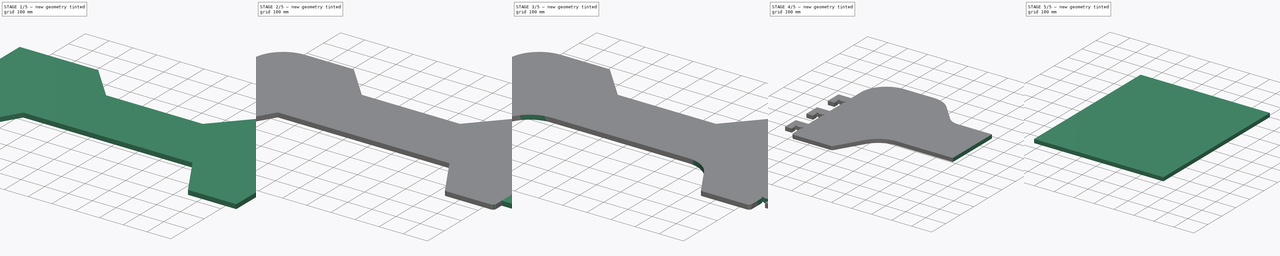
[diagram: build sequence overview — one tinted view per stage of 5, left to right]
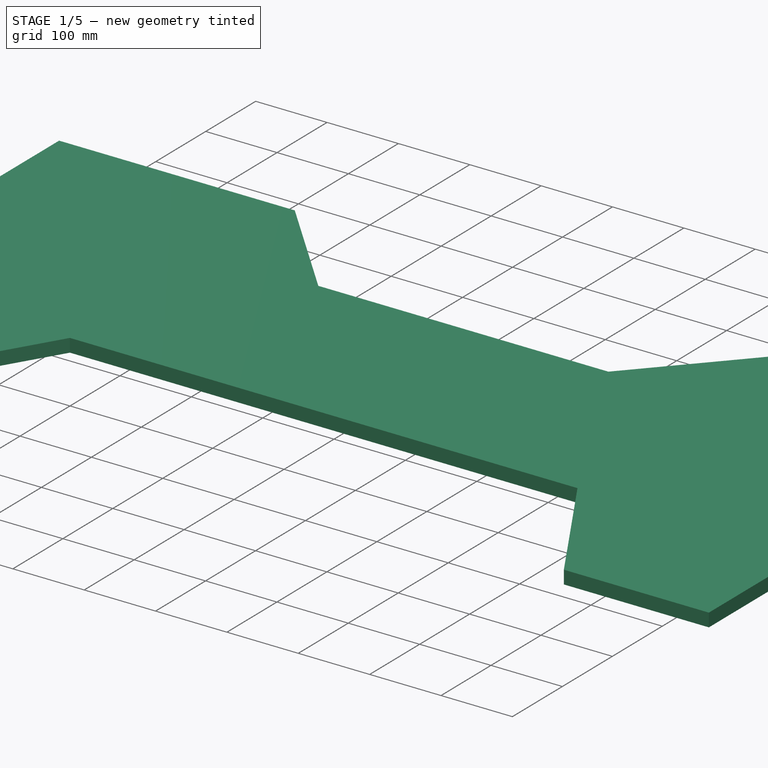
[diagram: stage 1 of 5 — iso view after this stage's code; geometry added in this stage tinted green]
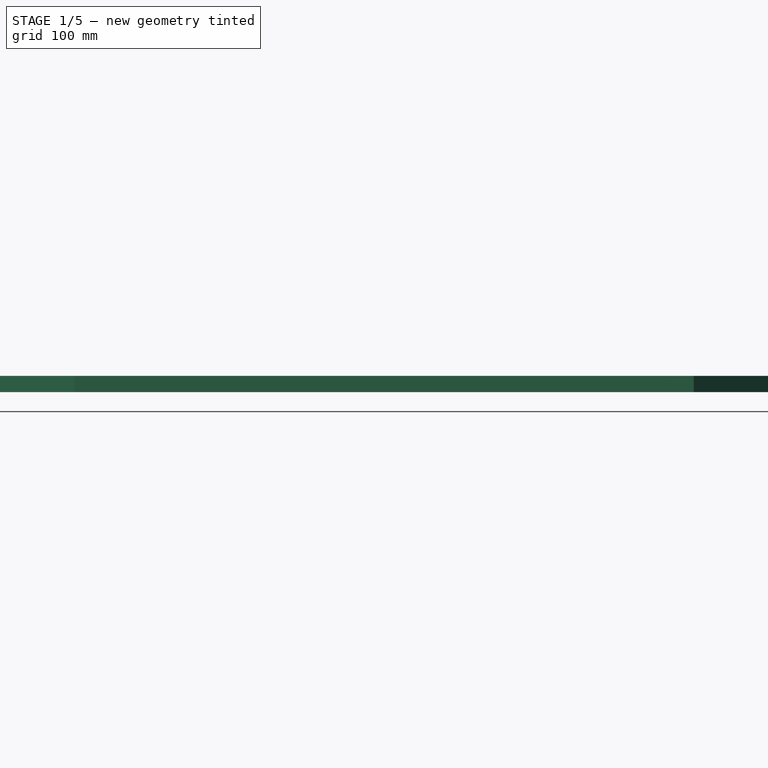
[diagram: stage 1 of 5 — front view after this stage's code; geometry added in this stage tinted green]
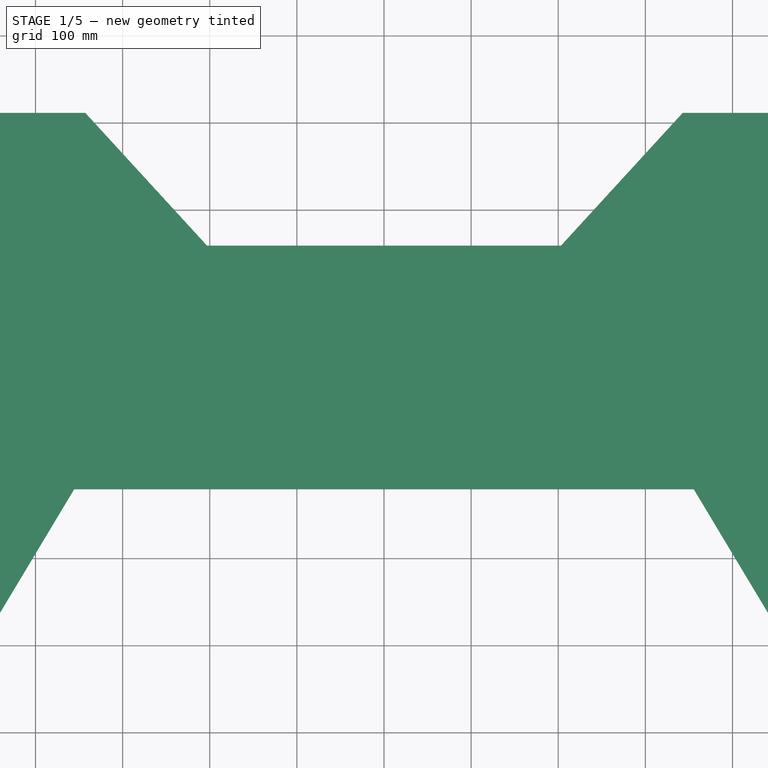
[diagram: stage 1 of 5 — top view after this stage's code; geometry added in this stage tinted green]
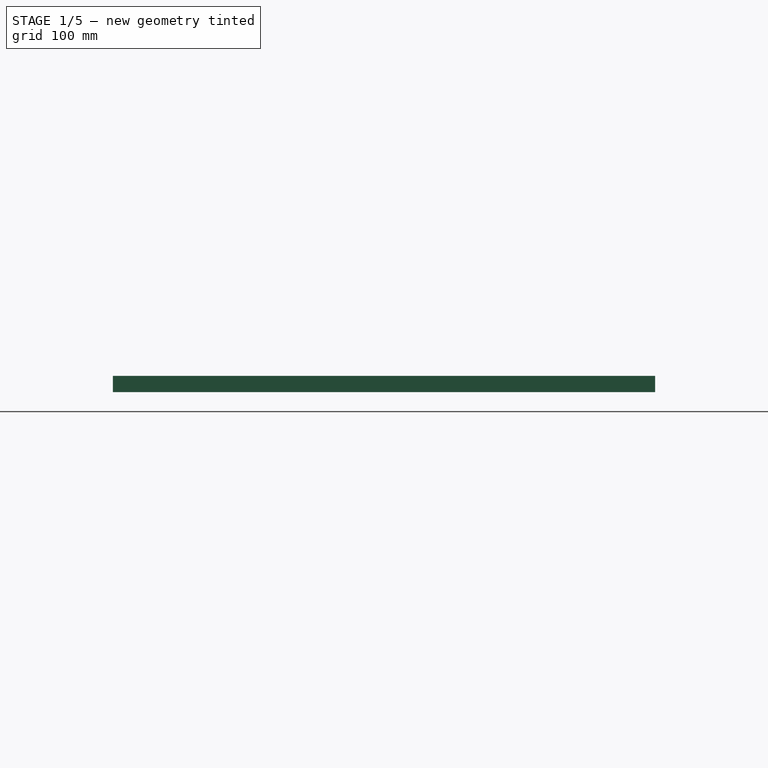
[diagram: stage 1 of 5 — right view after this stage's code; geometry added in this stage tinted green]
FCSTD DOCUMENT  (FreeCAD 0.17R13515 (Git))
Label: side3
License: All rights reserved
LicenseURL: http://en.wikipedia.org/wiki/All_rights_reserved
objects: Sketcher::SketchObject×8, PartDesign::Pocket×6, PartDesign::Fillet×5, Path::FeaturePython×4, PartDesign::Pad×2, Part::FeaturePython×2, Spreadsheet::Sheet×1, PartDesign::Body×1, App::FeaturePython×1, Path::FeatureCompoundPython×1
note: 34 computed .brp shape members not serialized (recipe doc carries the construction recipe); baked Part::Feature solids carry a one-line shape summary decoded from their .brp

FEATURE [Sketcher::SketchObject] Sketch
  MapMode = 5
  Support = -> [XY_Plane]
  expr: Constraints[15] = Spreadsheet.tall
  expr: Constraints[14] = Spreadsheet.width
  sketch-geometry (6):
    g0: LineSegment StartX=-673.1 StartY=311.15 StartZ=0 EndX=673.1 EndY=311.15 EndZ=0
    g1: LineSegment StartX=673.1 StartY=311.15 StartZ=0 EndX=673.1 EndY=-311.15 EndZ=0
    g2: LineSegment StartX=673.1 StartY=-311.15 StartZ=0 EndX=-673.1 EndY=-311.15 EndZ=0
    g3: LineSegment StartX=-673.1 StartY=-311.15 StartZ=0 EndX=-673.1 EndY=311.15 EndZ=0
    g4: LineSegment [constr] StartX=-673.1 StartY=311.15 StartZ=0 EndX=673.1 EndY=-311.15 EndZ=0
    g5: LineSegment [constr] StartX=673.1 StartY=311.15 StartZ=0 EndX=-673.1 EndY=-311.15 EndZ=0
  constraints (16):
    c: Coincident(g0,g1)
    c: Coincident(g1,g2)
    c: Coincident(g2,g3)
    c: Coincident(g3,g0)
    c: Horizontal(g0)
    c: Horizontal(g2)
    c: Vertical(g1)
    c: Vertical(g3)
    c: Coincident(g4,g0)
    c: Coincident(g4,g1)
    c: Coincident(g5,g0)
    c: Coincident(g5,g2)
    c: PointOnObject(g-1,g4)
    c: PointOnObject(g-1,g5)
    c: Distance(g2) = 1346.2
    c: Distance(g3) = 622.3
FEATURE [Spreadsheet::Sheet] Spreadsheet
  cells = A1=width; B1(width)==53in; A2=tall; B2(tall)==24.5in; A3=bottom clearance; B3(botclear)==7.5in; A4=leg width; B4(legwide)==8in; A5=joint tall; B5(jointtall)==3in; A6=joint wide; B6(jointwide)==0.73499999999999999in; A7=open bed; B7(opentall)==8in; A8=side thick; B8(sidethick)==11in; A9=top cleared half; B9(topclear)==13in; A10=top bottom U; B10(topbotU)==8in; A11=topUdepth; B11(topUdep)==8in; A12=bottomclear top part; B12(botcleartop)==14in; A13=slott; B13(slott)==3in
FEATURE [PartDesign::Pad] Pad
  Length = 18.669
  Length2 = 100
  Profile = -> Sketch
  Type = 0
FEATURE [Sketcher::SketchObject] Sketch001
  ExternalGeometry = -> [Pad]
  MapMode = 5
  Placement = pos=(0,0,18.669) rot=(0,0,1;0rad)
  Support = -> [Pad]
  expr: Constraints[8] = Spreadsheet.botclear
  expr: Constraints[4] = Spreadsheet.botcleartop
  expr: Constraints[6] = Spreadsheet.botcleartop
  expr: Constraints[2] = Spreadsheet.legwide
  expr: Constraints[3] = Spreadsheet.legwide
  expr: Constraints[1] = Spreadsheet.botclear
  sketch-geometry (4):
    g0: LineSegment StartX=-355.6 StartY=-120.65 StartZ=0 EndX=355.6 EndY=-120.65 EndZ=0
    g1: LineSegment StartX=355.6 StartY=-120.65 StartZ=0 EndX=469.9 EndY=-311.15 EndZ=0
    g2: LineSegment StartX=469.9 StartY=-311.15 StartZ=0 EndX=-469.9 EndY=-311.15 EndZ=0
    g3: LineSegment StartX=-469.9 StartY=-311.15 StartZ=0 EndX=-355.6 EndY=-120.65 EndZ=0
  constraints (12):
    c: PointOnObject(g1,g-3)
    c: DistanceY(g1,g0) = 190.5
    c: DistanceX(g1,g-3) = 203.2
    c: DistanceX(g-3,g2) = 203.2
    c: DistanceX(g0,g-1) = 355.6
    c: Coincident(g3,g0)
    c: DistanceX(g-1,g0) = 355.6
    c: Coincident(g1,g0)
    c: DistanceY(g2,g0) = 190.5
    c: Coincident(g2,g3)
    c: PointOnObject(g2,g-3)
    c: Coincident(g2,g1)
FEATURE [PartDesign::Pocket] Pocket
  BaseFeature = -> Pad
  Length = 4.99999
  Length2 = 100
  Profile = -> Sketch001
  Type = 1
FEATURE [Sketcher::SketchObject] Sketch002
  ExternalGeometry = -> [Pocket]
  MapMode = 5
  Placement = pos=(0,0,18.669) rot=(0,0,1;0rad)
  Support = -> [Pocket]
  expr: Constraints[11] = Spreadsheet.topbotU
  expr: Constraints[9] = Spreadsheet.sidethick
  expr: Constraints[2] = Spreadsheet.topclear
  expr: Constraints[10] = Spreadsheet.topbotU
  expr: Constraints[1] = Spreadsheet.topclear
  sketch-geometry (4):
    g0: LineSegment StartX=-342.9 StartY=311.15 StartZ=0 EndX=342.9 EndY=311.15 EndZ=0
    g1: LineSegment StartX=342.9 StartY=311.15 StartZ=0 EndX=203.2 EndY=158.75 EndZ=0
    g2: LineSegment StartX=-203.2 StartY=158.75 StartZ=0 EndX=-342.9 EndY=311.15 EndZ=0
    g3: LineSegment StartX=-203.2 StartY=158.75 StartZ=0 EndX=203.2 EndY=158.75 EndZ=0
  constraints (12):
    c: PointOnObject(g0,g-3)
    c: DistanceX(g-6,g0) = 330.2
    c: DistanceX(g0,g-5) = 330.2
    c: Coincident(g1,g0)
    c: Coincident(g2,g0)
    c: Coincident(g3,g2)
    c: Coincident(g3,g1)
    c: Horizontal(g3)
    c: Parallel(g3,g0)
    c: DistanceY(g-4,g2) = 279.4
    c: DistanceX(g-1,g1) = 203.2
    c: DistanceX(g2,g-1) = 203.2
FEATURE [PartDesign::Pocket] Pocket001
  BaseFeature = -> Pocket
  Length = 4.99999
  Length2 = 100
  Profile = -> Sketch002
  Type = 1
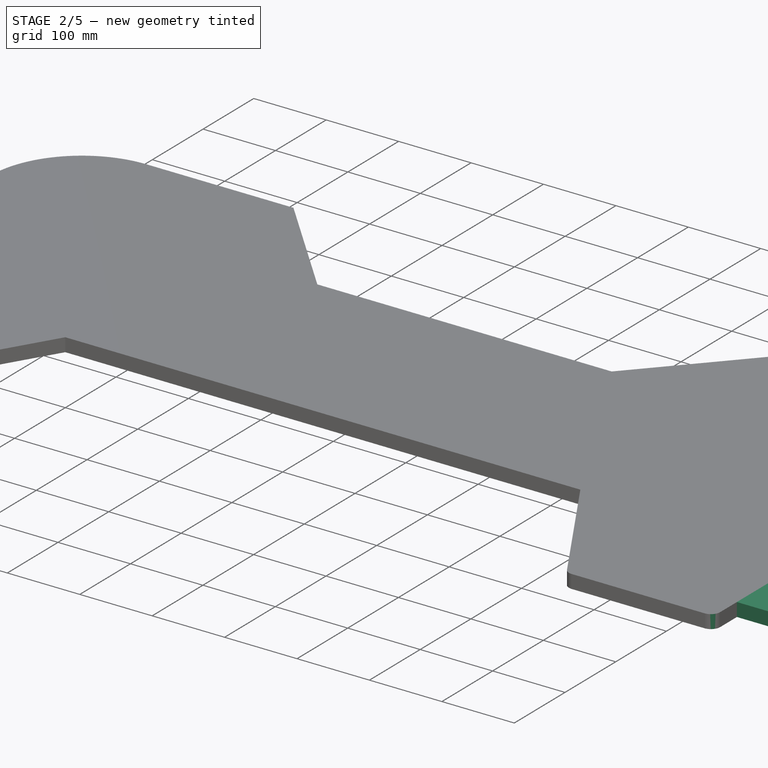
[diagram: stage 2 of 5 — iso view after this stage's code; geometry added in this stage tinted green]
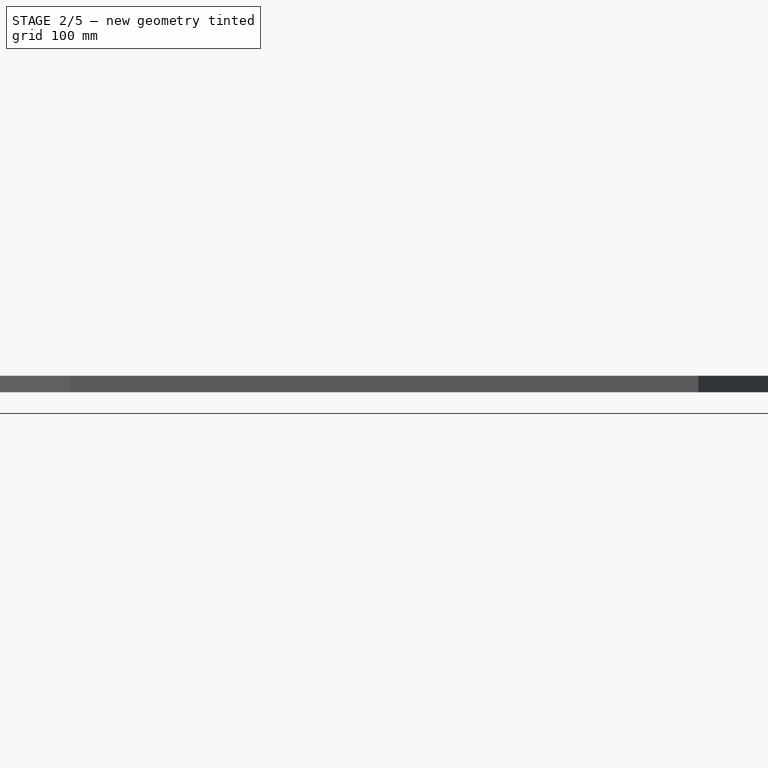
[diagram: stage 2 of 5 — front view after this stage's code; geometry added in this stage tinted green]
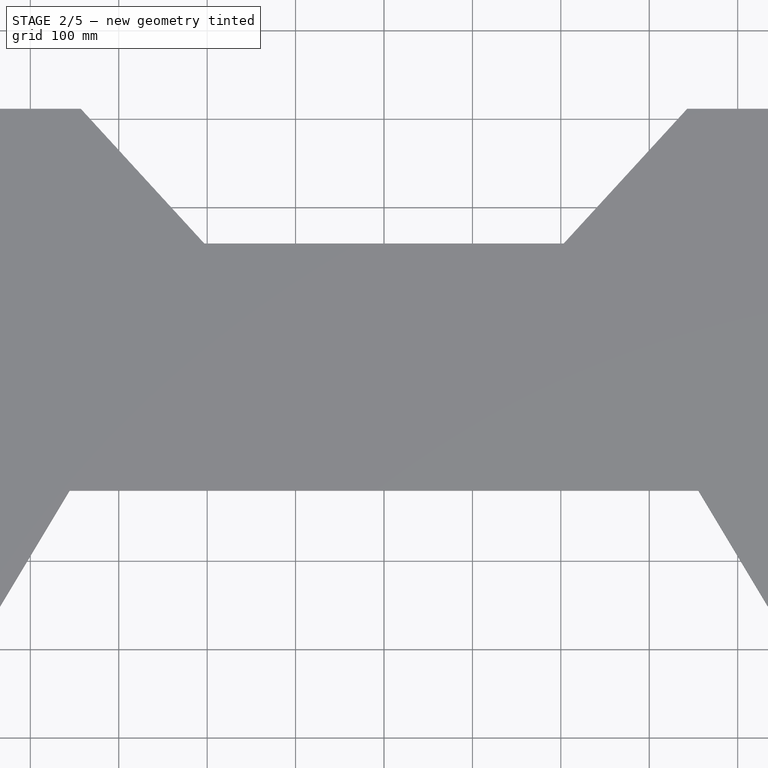
[diagram: stage 2 of 5 — top view after this stage's code; geometry added in this stage tinted green]
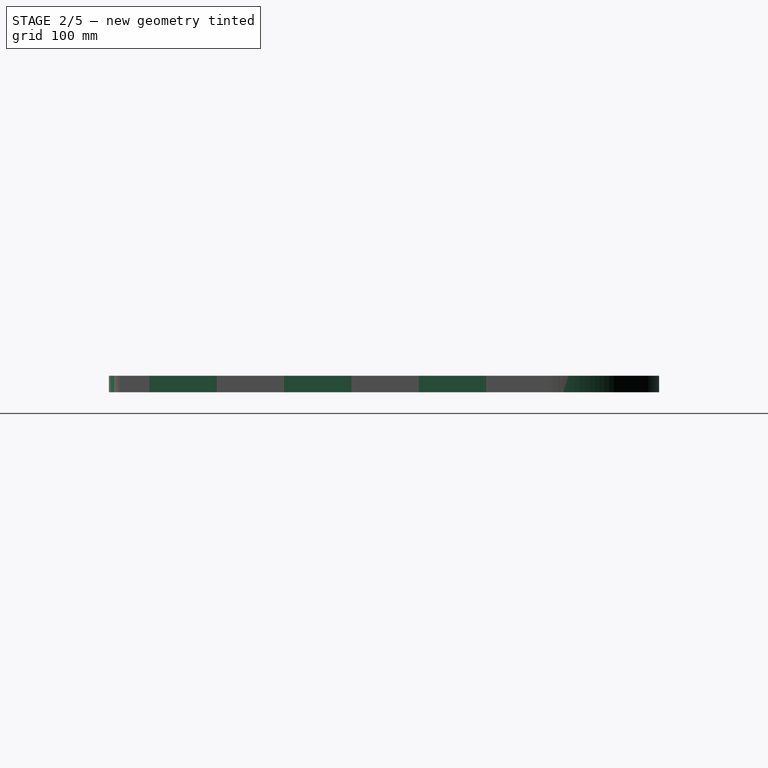
[diagram: stage 2 of 5 — right view after this stage's code; geometry added in this stage tinted green]
FEATURE [Sketcher::SketchObject] Sketch003
  ExternalGeometry = -> [Pocket001]
  MapMode = 5
  Placement = pos=(0,0,18.669) rot=(0,0,1;0rad)
  Support = -> [Pocket001]
  sketch-geometry (28):
    g0: LineSegment StartX=673.1 StartY=115.57 StartZ=0 EndX=736.6 EndY=115.57 EndZ=0
    g1: LineSegment StartX=736.6 StartY=115.57 StartZ=0 EndX=736.6 EndY=39.37 EndZ=0
    g2: LineSegment StartX=736.6 StartY=39.37 StartZ=0 EndX=673.1 EndY=39.37 EndZ=0
    g3: LineSegment StartX=673.1 StartY=39.37 StartZ=0 EndX=673.1 EndY=115.57 EndZ=0
    g4: LineSegment StartX=673.1 StartY=-36.83 StartZ=0 EndX=736.6 EndY=-36.83 EndZ=0
    g5: LineSegment StartX=736.6 StartY=-36.83 StartZ=0 EndX=736.6 EndY=-113.03 EndZ=0
    g6: LineSegment StartX=736.6 StartY=-113.03 StartZ=0 EndX=673.1 EndY=-113.03 EndZ=0
    g7: LineSegment StartX=673.1 StartY=-113.03 StartZ=0 EndX=673.1 EndY=-36.83 EndZ=0
    g8: LineSegment StartX=673.1 StartY=-189.23 StartZ=0 EndX=736.6 EndY=-189.23 EndZ=0
    g9: LineSegment StartX=736.6 StartY=-189.23 StartZ=0 EndX=736.6 EndY=-265.43 EndZ=0
    g10: LineSegment StartX=736.6 StartY=-265.43 StartZ=0 EndX=673.1 EndY=-265.43 EndZ=0
    g11: LineSegment StartX=673.1 StartY=-265.43 StartZ=0 EndX=673.1 EndY=-189.23 EndZ=0
    g12: LineSegment StartX=-673.1 StartY=-265.43 StartZ=0 EndX=-736.6 EndY=-265.43 EndZ=0
    g13: LineSegment StartX=-736.6 StartY=-265.43 StartZ=0 EndX=-736.6 EndY=-189.23 EndZ=0
    g14: LineSegment StartX=-736.6 StartY=-189.23 StartZ=0 EndX=-673.1 EndY=-189.23 EndZ=0
    g15: LineSegment StartX=-673.1 StartY=-189.23 StartZ=0 EndX=-673.1 EndY=-265.43 EndZ=0
    g16: LineSegment StartX=-673.1 StartY=39.37 StartZ=0 EndX=-736.6 EndY=39.37 EndZ=0
    g17: LineSegment StartX=-736.6 StartY=39.37 StartZ=0 EndX=-736.6 EndY=115.57 EndZ=0
    g18: LineSegment StartX=-736.6 StartY=115.57 StartZ=0 EndX=-673.1 EndY=115.57 EndZ=0
    g19: LineSegment StartX=-673.1 StartY=115.57 StartZ=0 EndX=-673.1 EndY=39.37 EndZ=0
    g20: LineSegment StartX=-673.1 StartY=-113.03 StartZ=0 EndX=-736.6 EndY=-113.03 EndZ=0
    g21: LineSegment StartX=-736.6 StartY=-113.03 StartZ=0 EndX=-736.6 EndY=-36.83 EndZ=0
    g22: LineSegment StartX=-736.6 StartY=-36.83 StartZ=0 EndX=-673.1 EndY=-36.83 EndZ=0
    g23: LineSegment StartX=-673.1 StartY=-36.83 StartZ=0 EndX=-673.1 EndY=-113.03 EndZ=0
    g24: LineSegment [constr] StartX=736.6 StartY=-189.23 StartZ=0 EndX=736.6 EndY=-113.03 EndZ=0
    g25: LineSegment [constr] StartX=736.6 StartY=39.37 StartZ=0 EndX=736.6 EndY=-36.83 EndZ=0
    g26: LineSegment [constr] StartX=-736.6 StartY=-189.23 StartZ=0 EndX=-736.6 EndY=-113.03 EndZ=0
    g27: LineSegment [constr] StartX=-736.6 StartY=-36.83 StartZ=0 EndX=-736.6 EndY=39.37 EndZ=0
  constraints (80):
    c: Coincident(g0,g1)
    c: Coincident(g1,g2)
    c: Coincident(g2,g3)
    c: Coincident(g3,g0)
    c: Horizontal(g0)
    c: Horizontal(g2)
    c: Vertical(g1)
    c: Vertical(g3)
    c: PointOnObject(g0,g-4)
    c: Coincident(g4,g5)
    c: Coincident(g5,g6)
    c: Coincident(g6,g7)
    c: Coincident(g7,g4)
    c: Horizontal(g4)
    c: Horizontal(g6)
    c: Vertical(g5)
    c: Vertical(g7)
    c: PointOnObject(g4,g-4)
    c: Coincident(g8,g9)
    c: Coincident(g9,g10)
    c: Coincident(g10,g11)
    c: Coincident(g11,g8)
    c: Horizontal(g8)
    c: Horizontal(g10)
    c: Vertical(g9)
    c: Vertical(g11)
    c: PointOnObject(g8,g-4)
    c: Coincident(g12,g13)
    c: Coincident(g13,g14)
    c: Coincident(g14,g15)
    c: Coincident(g15,g12)
    c: Horizontal(g12)
    c: Horizontal(g14)
    c: Vertical(g13)
    c: Vertical(g15)
    c: PointOnObject(g12,g-3)
    c: Coincident(g16,g17)
    c: Coincident(g17,g18)
    c: Coincident(g18,g19)
    c: Coincident(g19,g16)
    c: Horizontal(g16)
    c: Horizontal(g18)
    c: Vertical(g17)
    c: Vertical(g19)
    c: PointOnObject(g16,g-3)
    c: Coincident(g20,g21)
    c: Coincident(g21,g22)
    c: Coincident(g22,g23)
    c: Coincident(g23,g20)
    c: Horizontal(g20)
    c: Horizontal(g22)
    c: Vertical(g21)
    c: Vertical(g23)
    c: PointOnObject(g20,g-3)
    c: DistanceY(g-4,g9) = 45.72
    c: DistanceX(g10,g10) = 63.5
    c: DistanceY(g8,g5) = 76.2
    c: Equal(g17,g21)
    c: Equal(g21,g13)
    c: Equal(g13,g1)
    c: Equal(g1,g5)
    c: Equal(g5,g9)
    c: Coincident(g24,g8)
    c: Coincident(g24,g5)
    c: Coincident(g25,g1)
    c: Coincident(g25,g4)
    c: Vertical(g25)
    c: Vertical(g24)
    c: Coincident(g26,g13)
    c: Coincident(g26,g20)
    c: Coincident(g27,g21)
    c: Coincident(g27,g16)
    c: Vertical(g27)
    c: Vertical(g26)
    c: Equal(g12,g10)
    c: DistanceY(g1,g1) = 76.2
    c: Equal(g24,g25)
    c: Equal(g25,g26)
    c: Equal(g26,g27)
    c: DistanceY(g-3,g12) = 45.72
FEATURE [PartDesign::Pad] Pad001
  BaseFeature = -> Pocket001
  Length = 18.669
  Length2 = 100
  Profile = -> Sketch003
  Reversed = true
  Type = 0
FEATURE [PartDesign::Fillet] Fillet
  Base = -> Pad001 [Edge64,Edge53,Edge54,Edge61]
  BaseFeature = -> Pad001
  Radius = 12.7
FEATURE [PartDesign::Fillet] Fillet001
  Base = -> Fillet [Edge67,Edge93]
  BaseFeature = -> Fillet
  Radius = 127
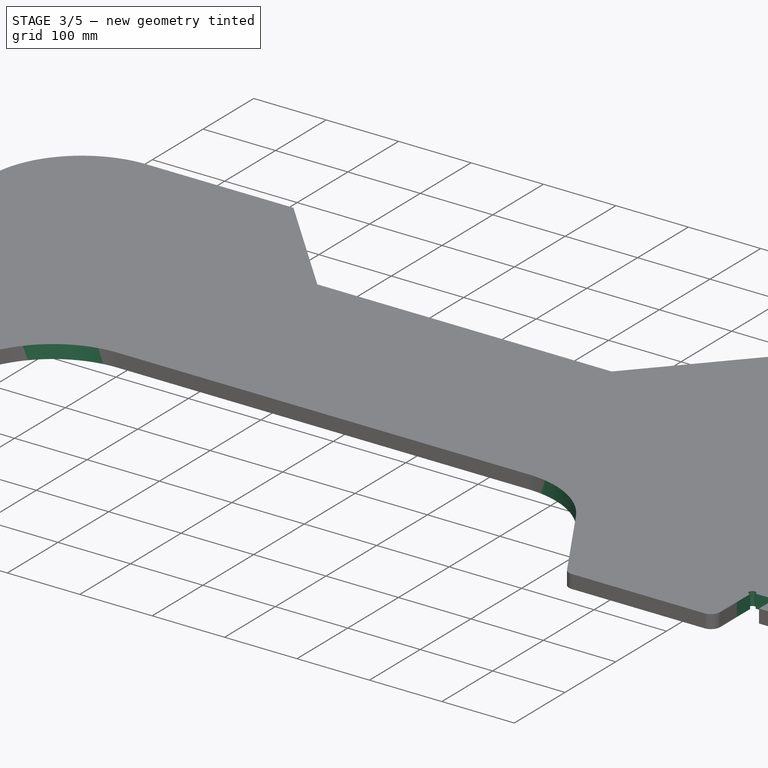
[diagram: stage 3 of 5 — iso view after this stage's code; geometry added in this stage tinted green]
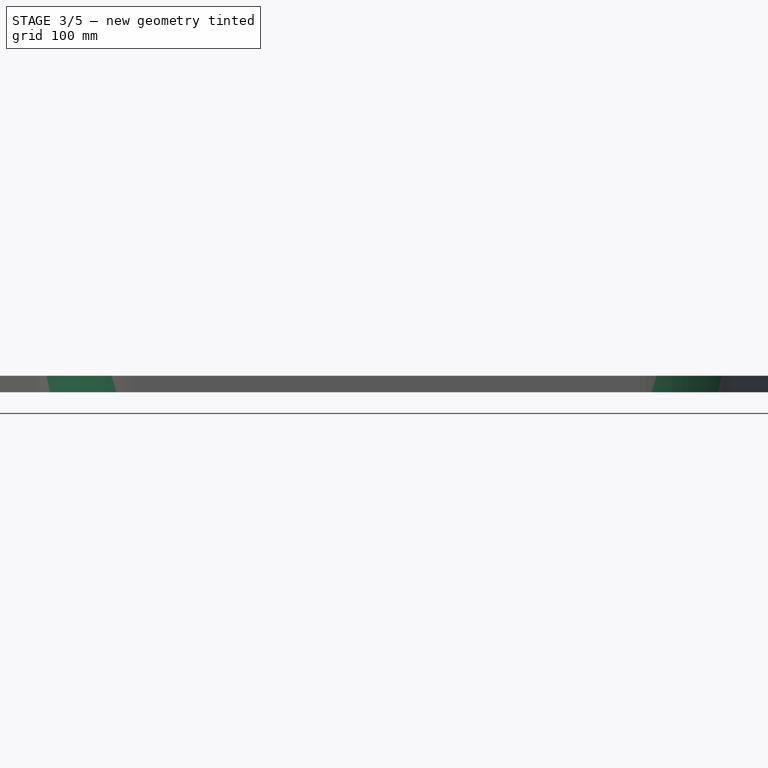
[diagram: stage 3 of 5 — front view after this stage's code; geometry added in this stage tinted green]
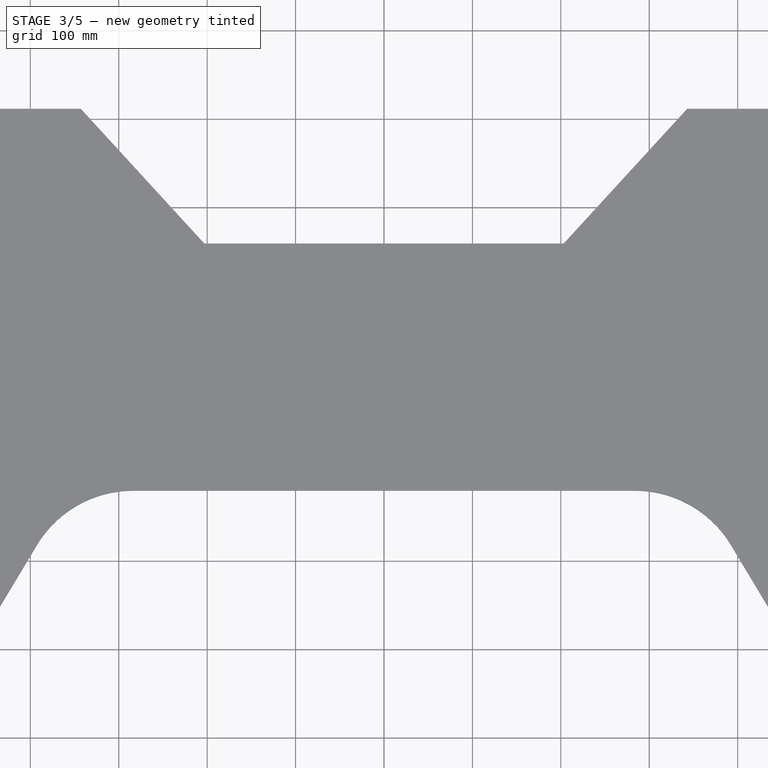
[diagram: stage 3 of 5 — top view after this stage's code; geometry added in this stage tinted green]
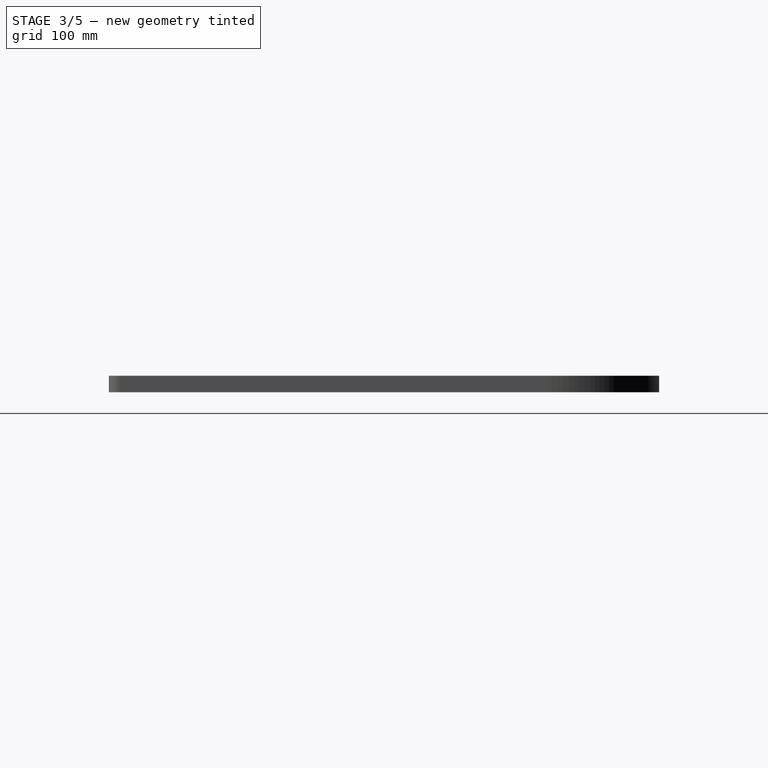
[diagram: stage 3 of 5 — right view after this stage's code; geometry added in this stage tinted green]
FEATURE [Sketcher::SketchObject] Sketch004
  ExternalGeometry = -> [Fillet001]
  MapMode = 5
  Placement = pos=(0,0,18.669) rot=(0,0,1;0rad)
  Support = -> [Fillet001]
  sketch-geometry (24):
    g0: LineSegment StartX=-673.1 StartY=39.37 StartZ=0 EndX=-703.58 EndY=39.37 EndZ=0
    g1: LineSegment StartX=-703.58 StartY=39.37 StartZ=0 EndX=-703.58 EndY=69.85 EndZ=0
    g2: LineSegment StartX=-703.58 StartY=69.85 StartZ=0 EndX=-673.1 EndY=69.85 EndZ=0
    g3: LineSegment StartX=-673.1 StartY=69.85 StartZ=0 EndX=-673.1 EndY=39.37 EndZ=0
    g4: LineSegment StartX=-673.1 StartY=-113.03 StartZ=0 EndX=-703.58 EndY=-113.03 EndZ=0
    g5: LineSegment StartX=-703.58 StartY=-113.03 StartZ=0 EndX=-703.58 EndY=-82.55 EndZ=0
    g6: LineSegment StartX=-703.58 StartY=-82.55 StartZ=0 EndX=-673.1 EndY=-82.55 EndZ=0
    g7: LineSegment StartX=-673.1 StartY=-82.55 StartZ=0 EndX=-673.1 EndY=-113.03 EndZ=0
    g8: LineSegment StartX=-673.1 StartY=-265.43 StartZ=0 EndX=-703.58 EndY=-265.43 EndZ=0
    g9: LineSegment StartX=-703.58 StartY=-265.43 StartZ=0 EndX=-703.58 EndY=-234.95 EndZ=0
    g10: LineSegment StartX=-703.58 StartY=-234.95 StartZ=0 EndX=-673.1 EndY=-234.95 EndZ=0
    g11: LineSegment StartX=-673.1 StartY=-234.95 StartZ=0 EndX=-673.1 EndY=-265.43 EndZ=0
    g12: LineSegment StartX=673.1 StartY=-265.43 StartZ=0 EndX=703.58 EndY=-265.43 EndZ=0
    g13: LineSegment StartX=703.58 StartY=-265.43 StartZ=0 EndX=703.58 EndY=-234.95 EndZ=0
    g14: LineSegment StartX=703.58 StartY=-234.95 StartZ=0 EndX=673.1 EndY=-234.95 EndZ=0
    g15: LineSegment StartX=673.1 StartY=-234.95 StartZ=0 EndX=673.1 EndY=-265.43 EndZ=0
    g16: LineSegment StartX=673.1 StartY=-113.03 StartZ=0 EndX=703.58 EndY=-113.03 EndZ=0
    g17: LineSegment StartX=703.58 StartY=-113.03 StartZ=0 EndX=703.58 EndY=-82.55 EndZ=0
    g18: LineSegment StartX=703.58 StartY=-82.55 StartZ=0 EndX=673.1 EndY=-82.55 EndZ=0
    g19: LineSegment StartX=673.1 StartY=-82.55 StartZ=0 EndX=673.1 EndY=-113.03 EndZ=0
    g20: LineSegment StartX=673.1 StartY=39.37 StartZ=0 EndX=703.58 EndY=39.37 EndZ=0
    g21: LineSegment StartX=703.58 StartY=39.37 StartZ=0 EndX=703.58 EndY=69.85 EndZ=0
    g22: LineSegment StartX=703.58 StartY=69.85 StartZ=0 EndX=673.1 EndY=69.85 EndZ=0
    g23: LineSegment StartX=673.1 StartY=69.85 StartZ=0 EndX=673.1 EndY=39.37 EndZ=0
  constraints (66):
    c: Coincident(g0,g1)
    c: Coincident(g1,g2)
    c: Coincident(g2,g3)
    c: Coincident(g3,g0)
    c: Horizontal(g0)
    c: Horizontal(g2)
    c: Vertical(g1)
    c: Vertical(g3)
    c: Coincident(g0,g-3)
    c: Coincident(g4,g5)
    c: Coincident(g5,g6)
    c: Coincident(g6,g7)
    c: Coincident(g7,g4)
    c: Horizontal(g4)
    c: Horizontal(g6)
    c: Vertical(g5)
    c: Vertical(g7)
    c: Coincident(g4,g-4)
    c: Coincident(g8,g9)
    c: Coincident(g9,g10)
    c: Coincident(g10,g11)
    c: Coincident(g11,g8)
    c: Horizontal(g8)
    c: Horizontal(g10)
    c: Vertical(g9)
    c: Vertical(g11)
    c: Coincident(g8,g-5)
    c: Coincident(g12,g13)
    c: Coincident(g13,g14)
    c: Coincident(g14,g15)
    c: Coincident(g15,g12)
    c: Horizontal(g12)
    c: Horizontal(g14)
    c: Vertical(g13)
    c: Vertical(g15)
    c: Coincident(g12,g-6)
    c: Coincident(g16,g17)
    c: Coincident(g17,g18)
    c: Coincident(g18,g19)
    c: Coincident(g19,g16)
    c: Horizontal(g16)
    c: Horizontal(g18)
    c: Vertical(g17)
    c: Vertical(g19)
    c: Coincident(g16,g-7)
    c: Coincident(g20,g21)
    c: Coincident(g21,g22)
    c: Coincident(g22,g23)
    c: Coincident(g23,g20)
    c: Horizontal(g20)
    c: Horizontal(g22)
    c: Vertical(g21)
    c: Vertical(g23)
    c: Coincident(g20,g-8)
    c: Equal(g3,g7)
    c: Equal(g7,g11)
    c: Equal(g11,g23)
    c: Equal(g23,g19)
    c: Equal(g19,g15)
    c: Equal(g22,g18)
    c: Equal(g18,g14)
    c: Equal(g14,g2)
    c: Equal(g2,g6)
    c: Equal(g6,g10)
    c: DistanceY(g3,g3) = 30.48
    c: DistanceX(g2,g2) = 30.48
FEATURE [PartDesign::Pocket] Pocket002
  BaseFeature = -> Fillet001
  Length = 4.99999
  Length2 = 100
  Profile = -> Sketch004
  Type = 1
FEATURE [Sketcher::SketchObject] Sketch005
  ExternalGeometry = -> [Pocket002]
  MapMode = 5
  Placement = pos=(0,0,18.669) rot=(0,0,1;0rad)
  Support = -> [Pocket002]
  sketch-geometry (15):
    g0: Circle CenterX=703.58 CenterY=-234.95 CenterZ=0 NormalX=0 NormalY=0 NormalZ=1 AngleXU=0 Radius=4.49013
    g1: Circle CenterX=673.1 CenterY=-234.95 CenterZ=0 NormalX=0 NormalY=0 NormalZ=1 AngleXU=0 Radius=4.49013
    g2: Circle CenterX=703.58 CenterY=-82.55 CenterZ=0 NormalX=0 NormalY=0 NormalZ=1 AngleXU=0 Radius=4.49013
    g3: Circle CenterX=673.1 CenterY=-82.55 CenterZ=0 NormalX=0 NormalY=0 NormalZ=1 AngleXU=0 Radius=4.49013
    g4: Circle CenterX=703.58 CenterY=69.85 CenterZ=0 NormalX=0 NormalY=0 NormalZ=1 AngleXU=0 Radius=4.49013
    g5: Circle CenterX=673.1 CenterY=69.85 CenterZ=0 NormalX=0 NormalY=0 NormalZ=1 AngleXU=0 Radius=4.49013
    g6: Circle CenterX=-673.1 CenterY=69.85 CenterZ=0 NormalX=0 NormalY=0 NormalZ=1 AngleXU=0 Radius=4.49013
    g7: Circle CenterX=-703.58 CenterY=69.85 CenterZ=0 NormalX=0 NormalY=0 NormalZ=1 AngleXU=0 Radius=4.49013
    g8: Circle CenterX=-673.1 CenterY=-82.55 CenterZ=0 NormalX=0 NormalY=0 NormalZ=1 AngleXU=0 Radius=4.49013
    g9: Circle CenterX=-703.58 CenterY=-82.55 CenterZ=0 NormalX=0 NormalY=0 NormalZ=1 AngleXU=0 Radius=4.49013
    g10: Circle CenterX=-703.58 CenterY=-234.95 CenterZ=0 NormalX=0 NormalY=0 NormalZ=1 AngleXU=0 Radius=4.49013
    g11: Circle CenterX=-673.1 CenterY=-234.95 CenterZ=0 NormalX=0 NormalY=0 NormalZ=1 AngleXU=0 Radius=4.49013
    g12: GeomPoint X=699.09 Y=-234.95 Z=0
    g13: GeomPoint X=703.58 Y=-239.44 Z=0
    g14: LineSegment [constr] StartX=699.09 StartY=-234.95 StartZ=0 EndX=703.58 EndY=-239.44 EndZ=0
  constraints (30):
    c: Coincident(g0,g-8)
    c: Coincident(g1,g-8)
    c: Coincident(g2,g-7)
    c: Coincident(g3,g-7)
    c: Coincident(g4,g-6)
    c: Coincident(g5,g-6)
    c: Coincident(g6,g-3)
    c: Coincident(g7,g-3)
    c: Coincident(g8,g-4)
    c: Coincident(g9,g-4)
    c: Coincident(g10,g-5)
    c: Coincident(g11,g-5)
    c: Equal(g11,g10)
    c: Equal(g10,g8)
    c: Equal(g8,g9)
    c: Equal(g9,g6)
    c: Equal(g6,g7)
    c: Equal(g7,g5)
    c: Equal(g5,g4)
    c: Equal(g4,g3)
    c: Equal(g3,g2)
    c: Equal(g2,g1)
    c: Equal(g1,g0)
    c: PointOnObject(g12,g-8)
    c: PointOnObject(g13,g-9)
    c: PointOnObject(g12,g0)
    c: PointOnObject(g13,g0)
    c: Coincident(g14,g12)
    c: Coincident(g14,g13)
    c: Distance(g14) = 6.35
FEATURE [PartDesign::Pocket] Pocket003
  BaseFeature = -> Pocket002
  Length = 4.99999
  Length2 = 100
  Profile = -> Sketch005
  Type = 1
FEATURE [PartDesign::Fillet] Fillet002
  Base = -> Pocket003 [Edge107,Edge109]
  BaseFeature = -> Pocket003
  Radius = 127
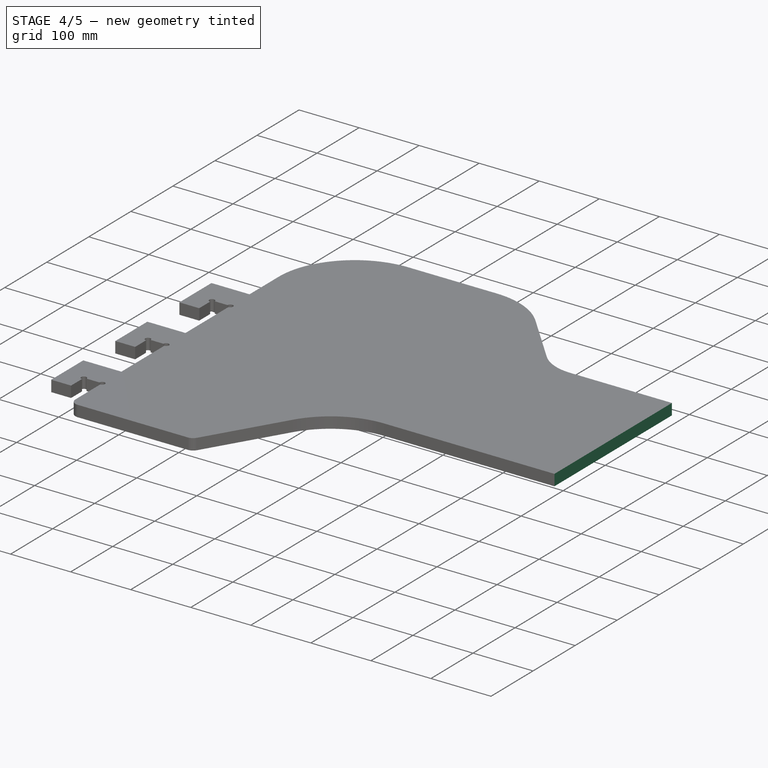
[diagram: stage 4 of 5 — iso view after this stage's code; geometry added in this stage tinted green]
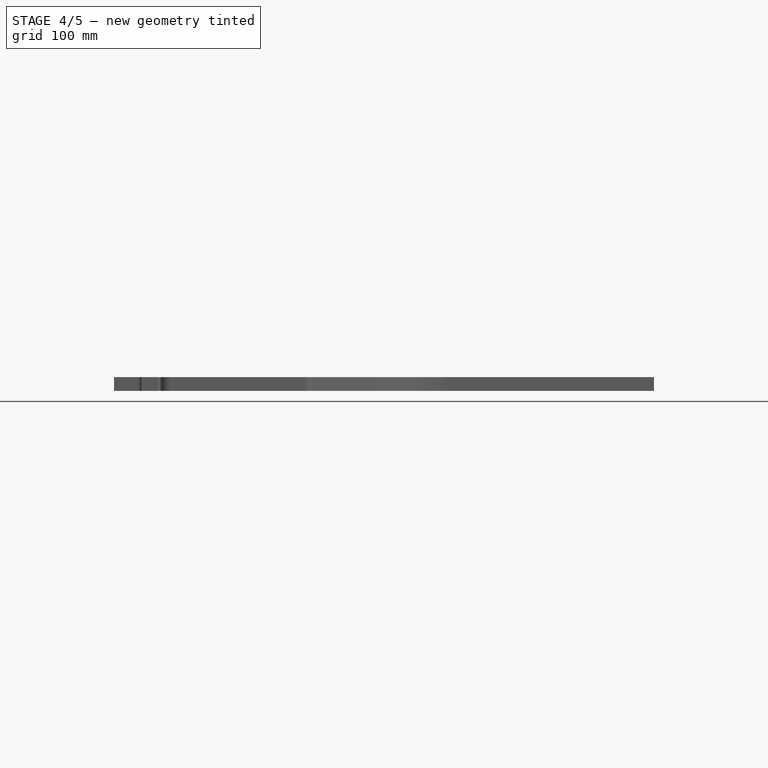
[diagram: stage 4 of 5 — front view after this stage's code; geometry added in this stage tinted green]
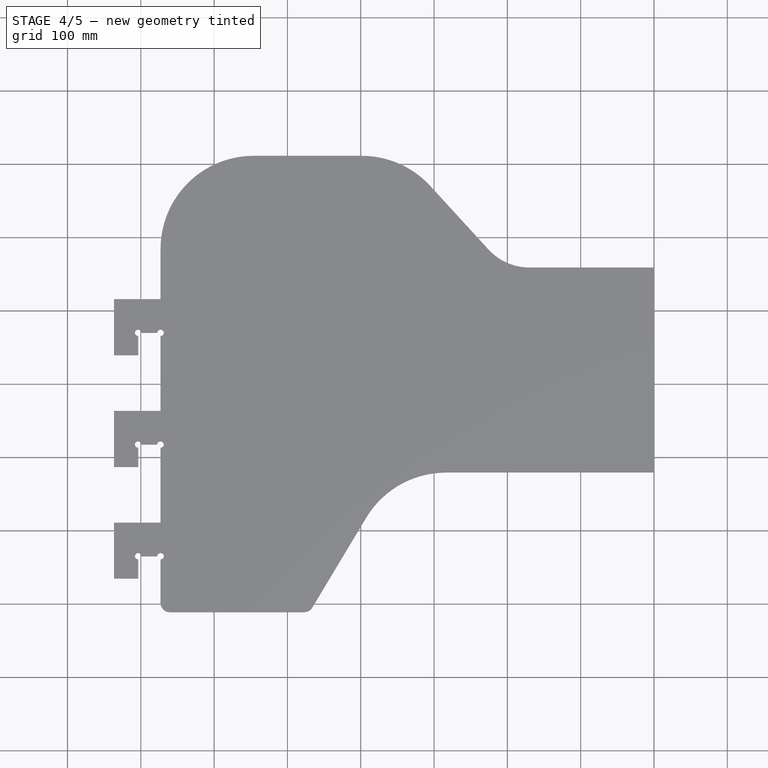
[diagram: stage 4 of 5 — top view after this stage's code; geometry added in this stage tinted green]
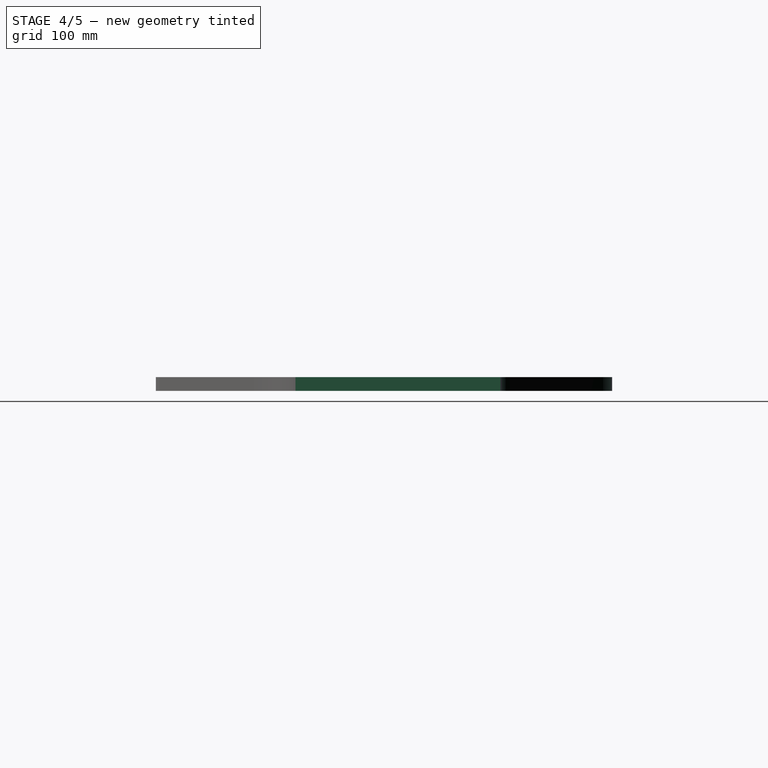
[diagram: stage 4 of 5 — right view after this stage's code; geometry added in this stage tinted green]
FEATURE [PartDesign::Fillet] Fillet003
  Base = -> Fillet002 [Edge178,Edge180]
  BaseFeature = -> Fillet002
  Radius = 127
FEATURE [PartDesign::Fillet] Fillet004
  Base = -> Fillet003 [Edge58,Edge62]
  BaseFeature = -> Fillet003
  Radius = 76.2
FEATURE [Sketcher::SketchObject] Sketch006
  ExternalGeometry = -> [Fillet004]
  MapMode = 5
  Placement = pos=(0,0,18.669) rot=(0,0,1;0rad)
  Support = -> [Fillet004]
  sketch-geometry (4):
    g0: LineSegment StartX=0 StartY=381 StartZ=0 EndX=736.6 EndY=381 EndZ=0
    g1: LineSegment StartX=736.6 StartY=381 StartZ=0 EndX=736.6 EndY=-381 EndZ=0
    g2: LineSegment StartX=736.6 StartY=-381 StartZ=0 EndX=0 EndY=-381 EndZ=0
    g3: LineSegment StartX=0 StartY=-381 StartZ=0 EndX=0 EndY=381 EndZ=0
  constraints (12):
    c: Coincident(g0,g1)
    c: Coincident(g1,g2)
    c: Coincident(g2,g3)
    c: Coincident(g3,g0)
    c: Horizontal(g0)
    c: Horizontal(g2)
    c: Vertical(g1)
    c: Vertical(g3)
    c: PointOnObject(g-3,g1)
    c: PointOnObject(g-1,g3)
    c: DistanceY(g0) = 381
    c: DistanceY(g1) = -381
FEATURE [PartDesign::Pocket] Pocket004
  BaseFeature = -> Fillet004
  Length = 4.99999
  Length2 = 100
  Profile = -> Sketch006
  Type = 1
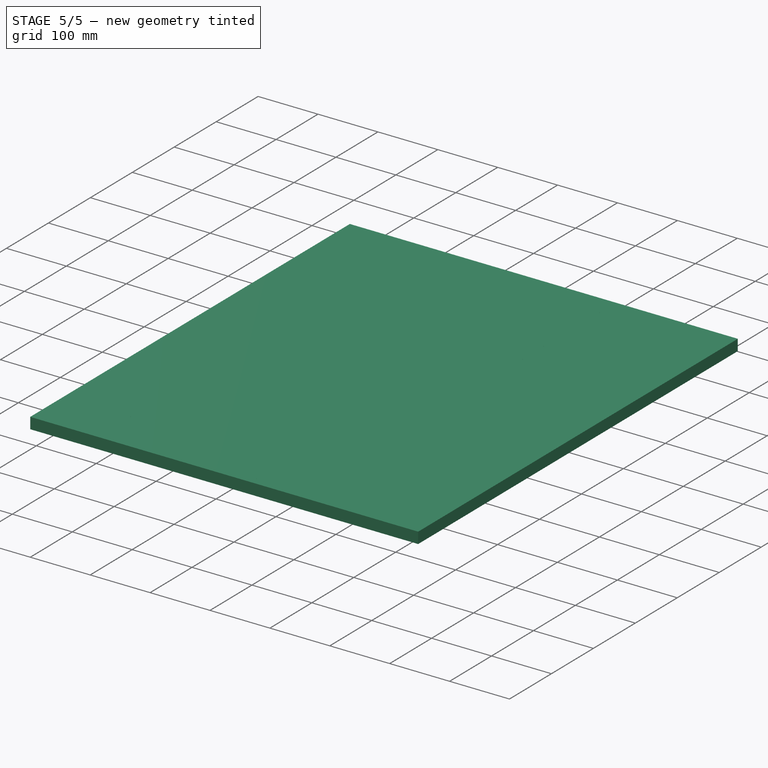
[diagram: stage 5 of 5 — iso view after this stage's code; geometry added in this stage tinted green]
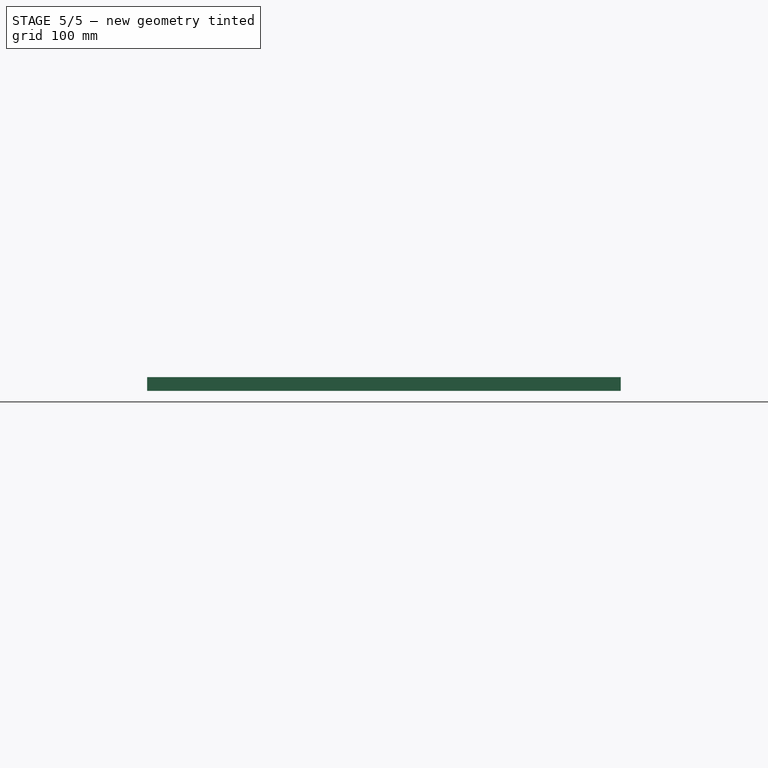
[diagram: stage 5 of 5 — front view after this stage's code; geometry added in this stage tinted green]
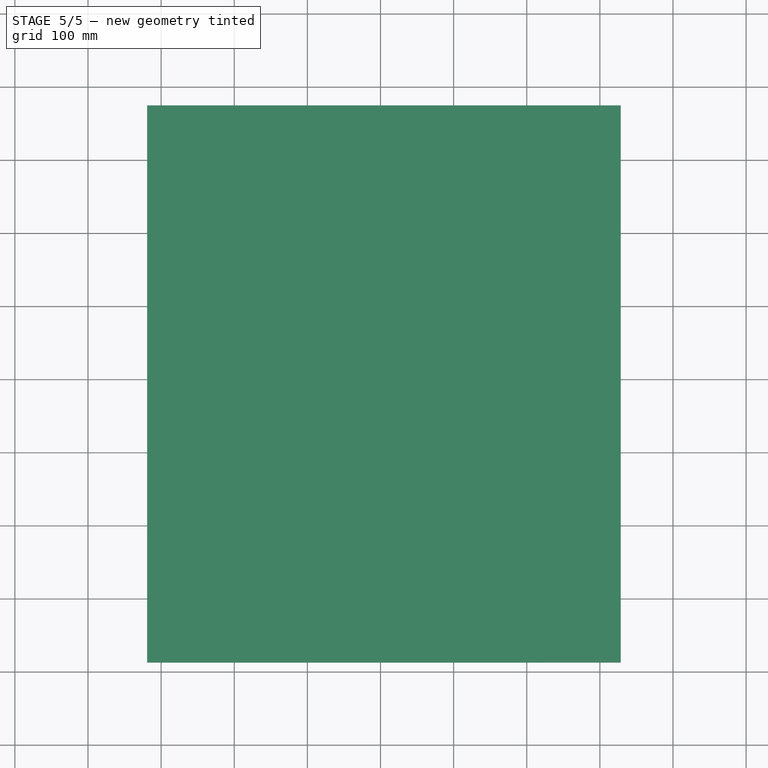
[diagram: stage 5 of 5 — top view after this stage's code; geometry added in this stage tinted green]
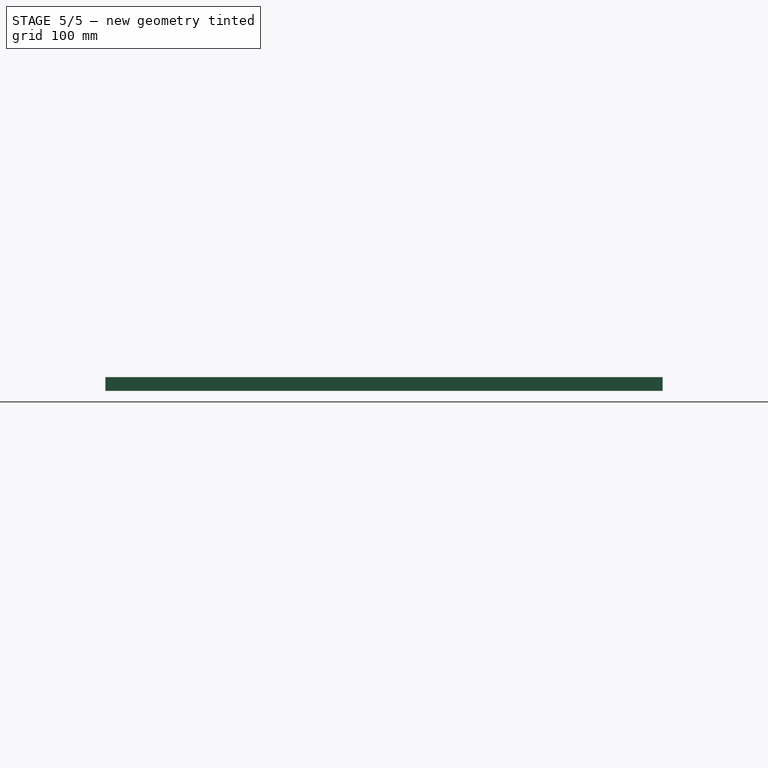
[diagram: stage 5 of 5 — right view after this stage's code; geometry added in this stage tinted green]
FEATURE [Sketcher::SketchObject] Sketch007
  ExternalGeometry = -> [Pocket004]
  MapMode = 5
  Placement = pos=(0,0,18.669) rot=(0,0,1;0rad)
  Support = -> [Pocket004]
  sketch-geometry (5):
    g0: LineSegment [constr] StartX=0 StartY=-82.55 StartZ=0 EndX=-673.1 EndY=-82.55 EndZ=0
    g1: Circle CenterX=-228.6 CenterY=-82.55 CenterZ=0 NormalX=0 NormalY=0 NormalZ=1 AngleXU=0 Radius=6.35
    g2: Circle CenterX=-381 CenterY=-82.55 CenterZ=0 NormalX=0 NormalY=0 NormalZ=1 AngleXU=0 Radius=6.35
    g3: Circle CenterX=-533.4 CenterY=-82.55 CenterZ=0 NormalX=0 NormalY=0 NormalZ=1 AngleXU=0 Radius=6.35
    g4: Circle CenterX=-76.2 CenterY=-82.55 CenterZ=0 NormalX=0 NormalY=0 NormalZ=1 AngleXU=0 Radius=6.35
  constraints (16):
    c: PointOnObject(g0,g-3)
    c: PointOnObject(g0,g-4)
    c: Horizontal(g0)
    c: DistanceY(g-3,g0) = 38.1
    c: PointOnObject(g1,g0)
    c: PointOnObject(g2,g0)
    c: PointOnObject(g3,g0)
    c: PointOnObject(g4,g0)
    c: Equal(g4,g1)
    c: Equal(g1,g2)
    c: Equal(g2,g3)
    c: Radius(g4) = 6.35
    c: DistanceX(g4,g0) = 76.2
    c: DistanceX(g1,g4) = 152.4
    c: DistanceX(g2,g1) = 152.4
    c: DistanceX(g3,g2) = 152.4
FEATURE [PartDesign::Pocket] Pocket005
  BaseFeature = -> Pocket004
  Length = 2.54
  Length2 = 100
  Profile = -> Sketch007
  Type = 0
FEATURE [PartDesign::Body] Body
  Group = -> [Sketch,Pad,Sketch001,Pocket,Sketch002,Pocket001,Sketch003,Pad001,Fillet,Fillet001,Sketch004,Pocket002,Sketch005,Pocket003,Fillet002,Fillet003,Fillet004,Sketch006,Pocket004,Sketch007,Pocket005]
  Origin = -> Origin
  Tip = -> Pocket005
FEATURE [App::FeaturePython] SetupSheet  # Path/CAM operation (typed FeaturePython)
  ClearanceHeightExpression = StartDepth+SetupSheet.ClearanceHeightOffset
  ClearanceHeightOffset = 1.27
  FinalDepthExpression = -0.80 in
  HorizRapid = 25.4
  SafeHeightExpression = StartDepth+SetupSheet.SafeHeightOffset
  SafeHeightOffset = 1.27
  StartDepthExpression = 0.0 in
  StepDownExpression = 0.20 in
  VertRapid = 12.7
FEATURE [Part::FeaturePython] Clone  label="Base-Body"  # Draft clone (typed FeaturePython)
  AttacherType = Attacher::AttachEngine3D
  Fuse = false
  Objects = -> [Body]
  PathResource = Base
  Placement = pos=(304.8,762,-18.669) rot=(0,0,1;1.5708rad)
  Scale = (1,1,1)
FEATURE [Part::FeaturePython] Stock  # WARN: FeaturePython — macro-defined, semantics opaque (R4)
  Base = -> Body
  ExtXneg = 12.7
  ExtXpos = 12.7
  ExtYneg = 12.7
  ExtYpos = 12.7
  ExtZneg = 0
  ExtZpos = 0
  Placement = pos=(304.8,762,-18.669) rot=(0,0,1;1.5708rad)
  StockType = FromBase
FEATURE [Path::FeaturePython] T3__Robynbit  label="T3: Robynbit"  # Path/CAM operation (typed FeaturePython)
  HorizFeed = 25.4
  HorizRapid = 25.4
  SpindleDir = 0
  SpindleSpeed = 0
  ToolNumber = 3
  VertFeed = 12.7
  VertRapid = 12.7
  expr: HorizRapid = SetupSheet.HorizRapid
  expr: VertRapid = SetupSheet.VertRapid
FEATURE [Path::FeaturePython] Profile_Faces  # Path/CAM operation (typed FeaturePython)
  Active = true
  AreaParams:
    OpenMode = 0
    Angle = 45.0
    MinArcPoints = 4
    Coplanar = 0
    Tolerance = 1e-07
    CleanDistance = 0.0
    PocketExtraOffset = 0.0
    RoundPrecision = 0.0
    AngleShift = 0.0
    SubjectFill = 0
    PocketMode = 0
    Simplify = False
    SectionTolerance = 1e-06
    MaxArcPoints = 100
    Offset = -3.175
    Accuracy = 0.0100076
    PocketStepover = 0.0
    ClipFill = 0
    ToolRadius = 1.0
    Outline = False
    ClipperScale = 10000000.0
    FromCenter = False
    Explode = False
    EndType = 0
    Shift = 0.0
    ExtraPass = 0
    Project = False
    JoinType = 0
    Thicken = False
    Stepdown = 1.0
    SectionMode = 2
    MiterLimit = 2.0
    Deflection = 0.01
    Reorient = True
    FitArcs = True
    SectionCount = -1
    SectionOffset = 0.0
    Stepover = 0.0
    Unit = 1.0
    Fill = 0
  Base = -> [Clone]
  ClearanceHeight = 1.27
  Direction = 0
  FinalDepth = -2.54
  JoinType = 0
  MiterLimit = 0.1
  OffsetExtra = 0
  OpFinalDepth = -2.54
  OpStartDepth = 0
  OpToolDiameter = 6.35
  PathParams = {'resume_height': 1.27, 'feedrate': 25.4, 'verbose': True, 'orientation': 1, 'return_end': True, 'preamble': False, 'retraction': 1.27, 'feedrate_v': 12.7}
  SafeHeight = 1.27
  Side = 1
  StartDepth = 0
  StartPoint = (0,0,0)
  StepDown = 5.08
  ToolController = -> T3__Robynbit
  UseComp = true
  UseStartPoint = false
  processCircles = false
  processHoles = false
  processPerimeter = true
  expr: ClearanceHeight = StartDepth + SetupSheet.ClearanceHeightOffset
  expr: SafeHeight = StartDepth + SetupSheet.SafeHeightOffset
  expr: FinalDepth = -0.10000000000000001in
  expr: StartDepth = 0in
FEATURE [Path::FeaturePython] Contour  # Path/CAM operation (typed FeaturePython)
  Active = true
  AreaParams:
    OpenMode = 0
    Angle = 45.0
    MinArcPoints = 4
    Coplanar = 2
    Tolerance = 1e-07
    CleanDistance = 0.0
    PocketExtraOffset = 0.0
    RoundPrecision = 0.0
    AngleShift = 0.0
    SubjectFill = 0
    PocketMode = 0
    Simplify = False
    SectionTolerance = 1e-06
    MaxArcPoints = 100
    Offset = 3.175
    Accuracy = 0.0100076
    PocketStepover = 0.0
    ClipFill = 0
    ToolRadius = 1.0
    Outline = False
    ClipperScale = 10000000.0
    FromCenter = False
    Explode = False
    EndType = 0
    Shift = 0.0
    ExtraPass = 0
    Project = False
    JoinType = 0
    Thicken = False
    Stepdown = 1.0
    SectionMode = 2
    MiterLimit = 2.0
    Deflection = 0.01
    Reorient = True
    FitArcs = True
    SectionCount = -1
    SectionOffset = 0.0
    Stepover = 0.0
    Unit = 1.0
    Fill = 0
  ClearanceHeight = 1.27
  Direction = 0
  FinalDepth = -20.32
  JoinType = 0
  MiterLimit = 0.1
  OffsetExtra = 0
  OpFinalDepth = -18.669
  OpStartDepth = 0
  OpToolDiameter = 6.35
  PathParams = {'resume_height': 1.27, 'feedrate': 25.4, 'verbose': True, 'orientation': 1, 'return_end': True, 'preamble': False, 'retraction': 1.27, 'feedrate_v': 12.7}
  SafeHeight = 1.27
  Side = 0
  StartDepth = 0
  StartPoint = (0,0,0)
  StepDown = 5.08
  ToolController = -> T3__Robynbit
  UseComp = true
  UseStartPoint = false
  expr: ClearanceHeight = StartDepth + SetupSheet.ClearanceHeightOffset
  expr: SafeHeight = StartDepth + SetupSheet.SafeHeightOffset
  expr: StepDown = 0.20000000000000001in
  expr: FinalDepth = -0.80000000000000004in
  expr: StartDepth = 0in
FEATURE [Path::FeatureCompoundPython] Operations  # Path/CAM operation (typed FeaturePython)
  Group = -> [Profile_Faces,Contour]
  UsePlacements = false
FEATURE [Path::FeaturePython] Job  # Path/CAM operation (typed FeaturePython)
  Base = -> Clone
  GeometryTolerance = 0.0100076
  Operations = -> Operations
  PostProcessor = 5
  SetupSheet = -> SetupSheet
  Stock = -> Stock
  ToolController = -> [T3__Robynbit]
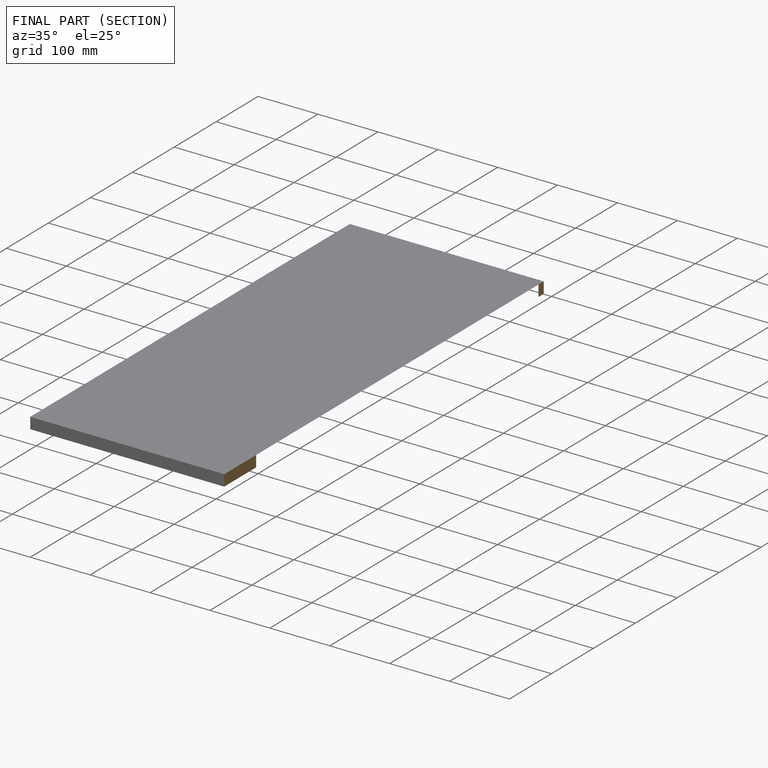
[diagram: finished part — half-section view (interior)]
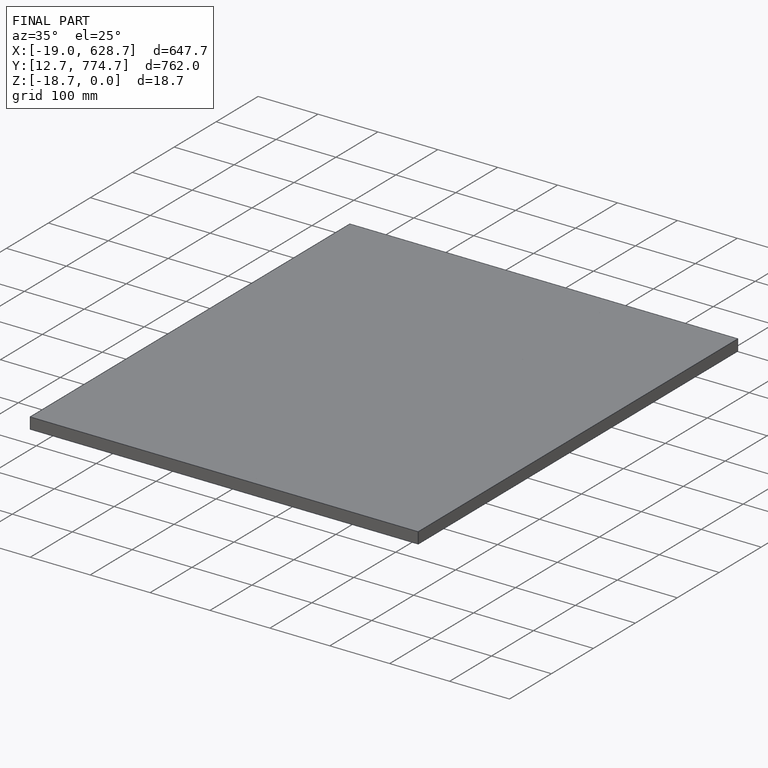
[diagram: finished part — iso view with bounding-box wireframe]
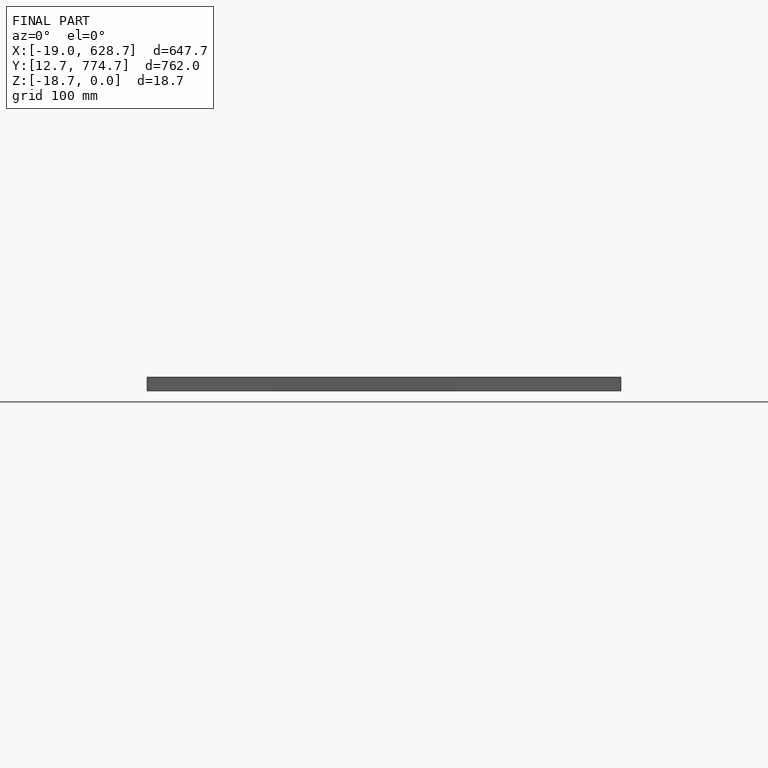
[diagram: finished part — front view with bounding-box wireframe]
